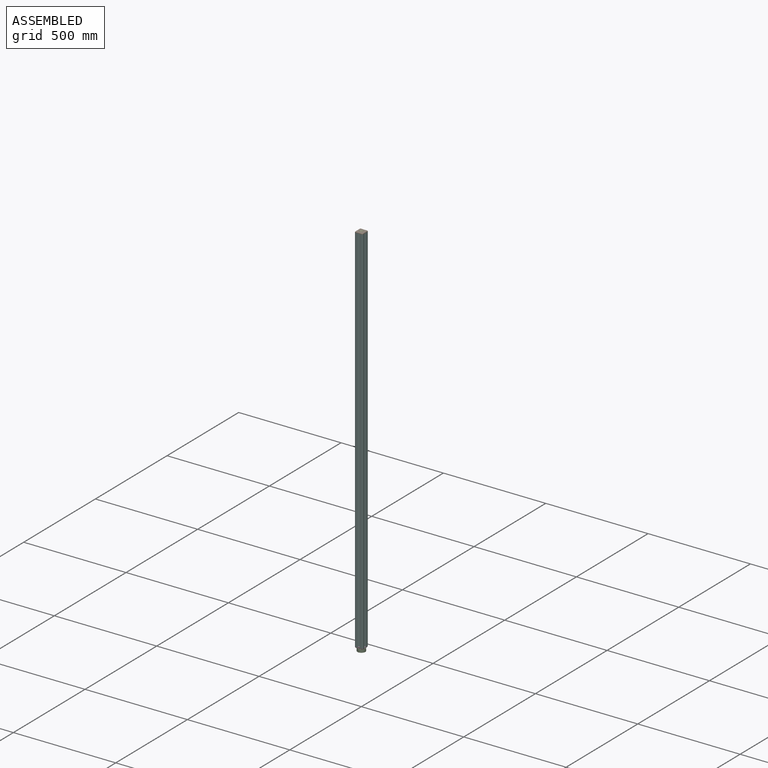
[diagram: assembled view]
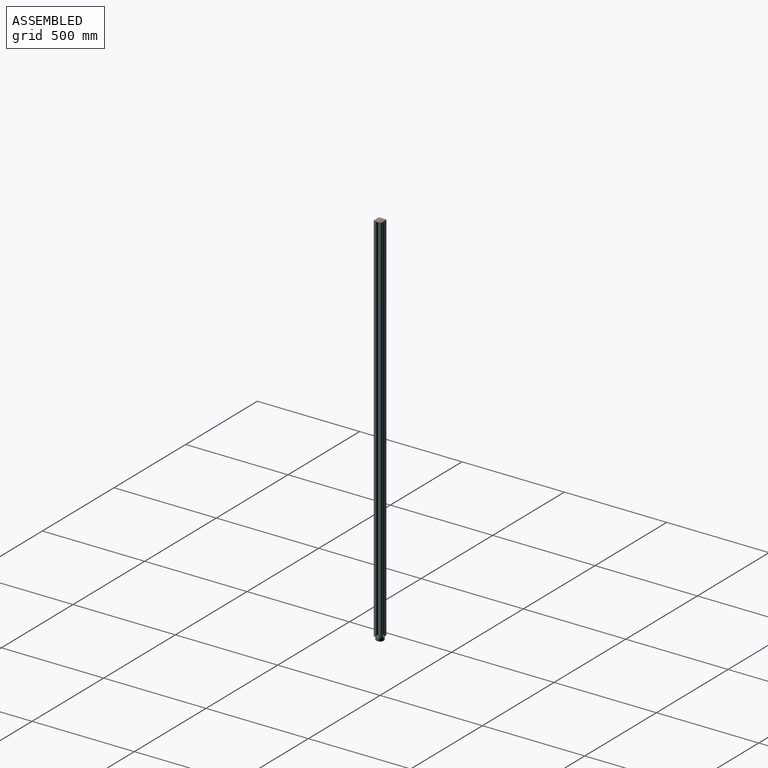
[diagram: assembled view, second angle]
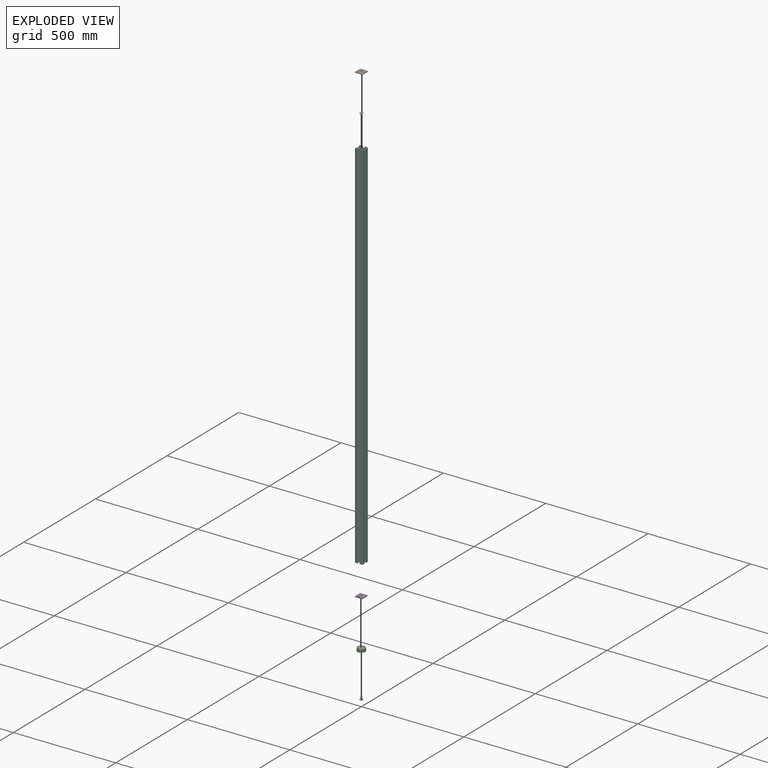
[diagram: exploded view]
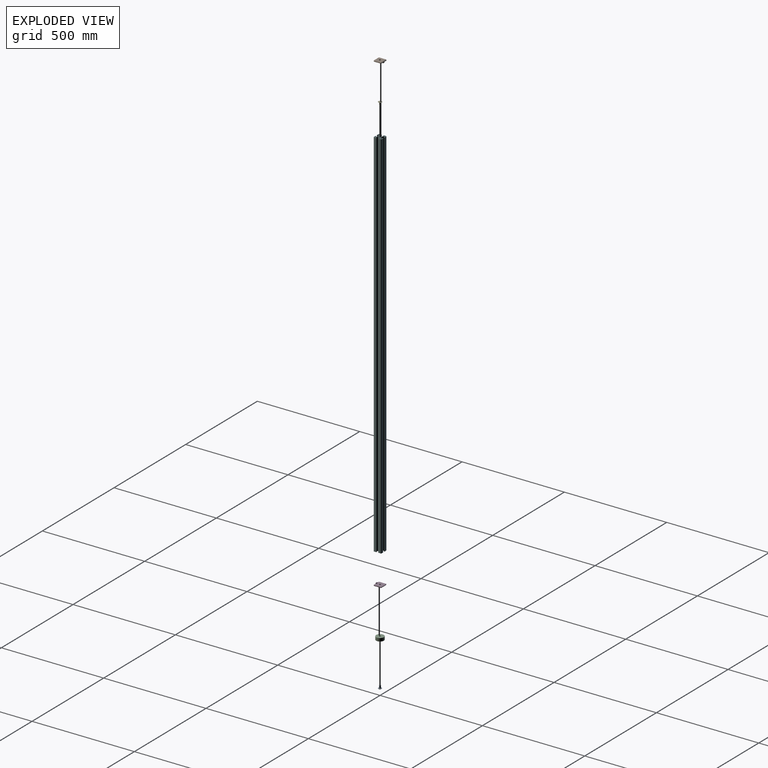
[diagram: exploded view, second angle]
ASSEMBLY  parts=6 mates=12
PART A: 19 faces, bbox 18.4x17x17 mm
  f0: torus R=0.76mm, axis (1,0,0), area 101mm2, adj f1,f2,f10
  f1: torus R=0.76mm, axis (1,0,0), area 101mm2, adj f0,f2,f10
  f2: plane 5.79x5.79mm, normal (-1,0,0), area 6.2mm2, adj f0,f1,f3,f4,f5,f6,f7,f8
  f3: plane 3.56x2.41mm, normal (0,-0.87,-0.5), area 9.9mm2, adj f2,f4,f8,f9
  f4: plane 3.56x2.79mm, normal (0,0,-1), area 9.9mm2, adj f2,f3,f5,f9
  f5: plane 3.56x2.41mm, normal (0,0.87,-0.5), area 9.9mm2, adj f2,f4,f6,f9
  f6: plane 3.56x2.41mm, normal (0,0.87,0.5), area 9.9mm2, adj f2,f5,f7,f9
  f7: plane 3.56x2.79mm, normal (0,0,1), area 9.9mm2, adj f2,f6,f8,f9
  f8: plane 3.56x2.41mm, normal (0,-0.87,0.5), area 9.9mm2, adj f2,f3,f7,f9
  f9: plane 5.57x4.83mm, normal (-1,0,0), area 20.2mm2, adj f3,f4,f5,f6,f7,f8
  f10: plane 17.02x17.02mm, normal (-1,0,0), area 43.2mm2, adj f0,f1,f11,f12
  f11: cylinder r=8.51mm len=17.02mm, axis (-1,0,0), area 21.7mm2, adj f10,f12,f13
  f12: cylinder r=8.51mm len=17.02mm, axis (-1,0,0), area 21.7mm2, adj f10,f11,f13
  f13: plane 17.02x17.02mm, normal (1,0,0), area 178mm2, adj f11,f12,f14,f15
  f14: cylinder r=3.97mm len=13.45mm, axis (-1,0,0), area 167.7mm2, adj f13,f15,f17
  f15: cylinder r=3.97mm len=13.45mm, axis (-1,0,0), area 167.7mm2, adj f13,f14,f16
  f16: cone r=3.97mm half-angle=45deg, axis (-1,0,0), area 13.2mm2, adj f15,f17,f18
  f17: cone r=3.97mm half-angle=45deg, axis (-1,0,0), area 13.2mm2, adj f14,f16,f18
  f18: plane 6.26x6.26mm, normal (1,0,0), area 30.8mm2, adj f16,f17
PART B: 28 faces, bbox 38.1x38.1x8.7 mm
  f0: cylinder r=0.38mm len=3.96mm, axis (0,0,-1), area 2.4mm2, adj f1,f6,f25,f26
  f1: plane 7.26x3.96mm, normal (0,-1,0), area 28.8mm2, adj f0,f2,f6,f26
  f2: cylinder r=0.38mm len=3.96mm, axis (0,0,-1), area 2.4mm2, adj f1,f3,f6,f26
  f3: plane 3.96x3.2mm, normal (1,0,0), area 12.7mm2, adj f2,f4,f6,f26
  f4: cylinder r=0.38mm len=3.96mm, axis (0,0,-1), area 2.4mm2, adj f3,f5,f6,f26
  f5: plane 31.75x5.56mm, normal (0,1,0), area 79.6mm2, adj f4,f6,f7,f11,f13,f26,f27
  f6: plane 38.1x38.1mm, normal (0,0,-1), area 1361.3mm2, adj f0,f1,f2,f3,f4,f5,f7,f8
  f7: cylinder r=3.17mm len=3.18mm, axis (0,0,-1), area 8mm2, adj f5,f6,f8,f10
  f8: plane 31.75x1.6mm, normal (-1,0,0), area 50.8mm2, adj f6,f7,f9,f17
  f9: cylinder r=3.17mm len=31.75mm, axis (0,1,0), area 158.3mm2, adj f8,f10,f18,f20
  f10: sphere r=3.17mm, area 15.8mm2, adj f7,f9,f11
  f11: cylinder r=3.17mm len=31.75mm, axis (1,0,0), area 158.3mm2, adj f5,f10,f12,f20
  f12: sphere r=3.17mm, area 15.8mm2, adj f11,f13,f21
  f13: cylinder r=3.17mm len=3.18mm, axis (0,0,1), area 8mm2, adj f5,f6,f12,f14
  f14: plane 31.75x1.6mm, normal (1,0,0), area 50.8mm2, adj f6,f13,f15,f21
  f15: cylinder r=3.17mm len=3.18mm, axis (0,0,1), area 8mm2, adj f6,f14,f16,f22
  f16: plane 31.75x1.6mm, normal (0,-1,0), area 50.8mm2, adj f6,f15,f17,f19
  f17: cylinder r=3.17mm len=3.18mm, axis (0,0,1), area 8mm2, adj f6,f8,f16,f18
  f18: sphere r=3.17mm, area 15.8mm2, adj f9,f17,f19
  f19: cylinder r=3.17mm len=31.75mm, axis (-1,0,0), area 158.3mm2, adj f16,f18,f20,f22
  f20: plane 31.75x31.75mm, normal (0,0,1), area 958.1mm2, adj f9,f11,f19,f21,f23,f24
  f21: cylinder r=3.17mm len=31.75mm, axis (0,-1,0), area 158.3mm2, adj f12,f14,f20,f22
  f22: sphere r=3.17mm, area 15.8mm2, adj f15,f19,f21
  f23: cylinder r=3.99mm len=7.98mm, axis (0,0,1), area 59.8mm2, adj f6,f20,f24
  f24: cylinder r=3.99mm len=7.98mm, axis (0,0,1), area 59.8mm2, adj f6,f20,f23
  f25: plane 3.96x3.2mm, normal (-1,0,0), area 12.7mm2, adj f0,f6,f26,f27
  f26: plane 8.03x3.96mm, normal (0,0,-1), area 31.7mm2, adj f0,f1,f2,f3,f4,f5,f25,f27
  f27: cylinder r=0.38mm len=3.96mm, axis (0,0,-1), area 2.4mm2, adj f5,f6,f25,f26
PART C: 13 faces, bbox 41.2x15.9x41.2 mm
  f0: plane 19.05x19.05mm, normal (0,1,0), area 235.7mm2, adj f1,f2,f11,f12
  f1: cylinder r=9.53mm len=19.05mm, axis (0,1,0), area 260.7mm2, adj f0,f2,f3
  f2: cylinder r=9.53mm len=19.05mm, axis (0,1,0), area 260.7mm2, adj f0,f1,f3
  f3: plane 36.83x36.83mm, normal (0,1,0), area 780.3mm2, adj f1,f2,f4,f5
  f4: torus R=18.41mm, axis (0,-1,0), area 59mm2, adj f3,f5,f7
  f5: torus R=18.41mm, axis (0,-1,0), area 59mm2, adj f3,f4,f6
  f6: cylinder r=19.05mm len=38.1mm, axis (0,1,0), area 874.1mm2, adj f5,f7,f9
  f7: cylinder r=19.05mm len=38.1mm, axis (0,1,0), area 874.1mm2, adj f4,f6,f8
  f8: torus R=18.41mm, axis (0,-1,0), area 59mm2, adj f7,f9,f10
  f9: torus R=18.41mm, axis (0,-1,0), area 59mm2, adj f6,f8,f10
  f10: plane 36.83x36.83mm, normal (0,-1,0), area 1016mm2, adj f8,f9,f11,f12
  f11: cylinder r=3.96mm len=7.92mm, axis (0,1,0), area 89.2mm2, adj f0,f10,f12
  f12: cylinder r=3.96mm len=7.92mm, axis (0,1,0), area 89.2mm2, adj f0,f10,f11
PART D: same geometry as B
PART E: 82 faces, bbox 19.4x18.4x19.4 mm
  f0: plane 2.07x2.06mm, normal (-1,0,0), area 0.7mm2, adj f1,f3,f4,f11
  f1: cone r=1.78mm half-angle=48.8deg, axis (0,1,0), area 17.1mm2, adj f0,f2,f3,f5,f11,f22
  f2: plane 2.07x2.06mm, normal (-1,0,0), area 0.7mm2, adj f1,f3,f4,f5
  f3: cylinder r=3.81mm len=7.2mm, axis (0,-1,0), area 3.6mm2, adj f0,f1,f2,f4
  f4: cone r=3.81mm half-angle=48.8deg, axis (0,1,0), area 17.1mm2, adj f0,f2,f3,f5,f11,f13
  f5: plane 2.76x1mm, normal (0,0,-1), area 0.9mm2, adj f1,f2,f4,f6,f9,f10
  f6: cone r=1.78mm half-angle=48.8deg, axis (0,1,0), area 17.1mm2, adj f5,f7,f8,f9,f11,f21
  f7: plane 2.07x2.06mm, normal (1,0,0), area 0.7mm2, adj f6,f8,f10,f11
  f8: cylinder r=3.81mm len=7.2mm, axis (0,-1,0), area 3.6mm2, adj f6,f7,f9,f10
  f9: plane 2.07x2.06mm, normal (1,0,0), area 0.7mm2, adj f5,f6,f8,f10
  f10: cone r=3.81mm half-angle=48.8deg, axis (0,1,0), area 17.1mm2, adj f5,f7,f8,f9,f11,f12
  f11: plane 2.76x1mm, normal (0,0,1), area 0.9mm2, adj f0,f1,f4,f6,f7,f10
  f12: cylinder r=1.78mm len=5.84mm, axis (0,1,0), area 32.6mm2, adj f10,f13,f14
  f13: cylinder r=1.78mm len=5.84mm, axis (0,1,0), area 32.6mm2, adj f4,f12,f14
  f14: plane 17.65x17.65mm, normal (0,-1,0), area 234.8mm2, adj f12,f13,f15,f16
  f15: cylinder r=8.83mm len=17.65mm, axis (0,1,0), area 6mm2, adj f14,f16,f18
  f16: cylinder r=8.83mm len=17.65mm, axis (0,1,0), area 6mm2, adj f14,f15,f17
  f17: torus R=8.19mm, axis (0,-1,0), area 21.2mm2, adj f16,f18,f19,f20
  f18: torus R=8.19mm, axis (0,-1,0), area 21.2mm2, adj f15,f17,f19,f20
  f19: sphere r=24.77mm, area 114.4mm2, adj f17,f18,f20
  f20: sphere r=24.77mm, area 114.4mm2, adj f17,f18,f19
  f21: cylinder r=1.78mm len=3.56mm, axis (0,1,0), area 6.4mm2, adj f6,f22,f29
  f22: cylinder r=1.78mm len=3.56mm, axis (0,1,0), area 6.4mm2, adj f1,f21,f23
  f23: cone r=3.81mm half-angle=48.8deg, axis (0,1,0), area 17.1mm2, adj f22,f24,f30,f32,f33,f34
  f24: plane 2.76x1mm, normal (0,0,-1), area 0.9mm2, adj f23,f25,f28,f29,f31,f32
  f25: cone r=1.78mm half-angle=48.8deg, axis (0,1,0), area 17.1mm2, adj f24,f26,f27,f28,f30,f36
  f26: plane 2.07x2.06mm, normal (1,0,0), area 0.7mm2, adj f25,f27,f29,f30
  f27: cylinder r=3.81mm len=7.2mm, axis (0,-1,0), area 3.6mm2, adj f25,f26,f28,f29
  f28: plane 2.07x2.06mm, normal (1,0,0), area 0.7mm2, adj f24,f25,f27,f29
  f29: cone r=3.81mm half-angle=48.8deg, axis (0,1,0), area 17.1mm2, adj f21,f24,f26,f27,f28,f30
  f30: plane 2.76x1mm, normal (0,0,1), area 0.9mm2, adj f23,f25,f26,f29,f31,f34
  f31: cone r=1.78mm half-angle=48.8deg, axis (0,1,0), area 17.1mm2, adj f24,f30,f32,f33,f34,f35
  f32: plane 2.07x2.06mm, normal (-1,0,0), area 0.7mm2, adj f23,f24,f31,f33
  f33: cylinder r=3.81mm len=7.2mm, axis (0,-1,0), area 3.6mm2, adj f23,f31,f32,f34
  f34: plane 2.07x2.06mm, normal (-1,0,0), area 0.7mm2, adj f23,f30,f31,f33
  f35: cylinder r=1.78mm len=3.56mm, axis (0,1,0), area 6.4mm2, adj f31,f36,f43
  f36: cylinder r=1.78mm len=3.56mm, axis (0,1,0), area 6.4mm2, adj f25,f35,f37
  f37: cone r=3.81mm half-angle=48.8deg, axis (0,1,0), area 17.1mm2, adj f36,f38,f44,f46,f47,f48
  f38: plane 2.76x1mm, normal (0,0,1), area 0.9mm2, adj f37,f39,f42,f43,f45,f46
  f39: cone r=1.78mm half-angle=48.8deg, axis (0,1,0), area 17.1mm2, adj f38,f40,f41,f42,f44,f50
  f40: plane 2.07x2.06mm, normal (-1,0,0), area 0.7mm2, adj f39,f41,f43,f44
  f41: cylinder r=3.81mm len=7.2mm, axis (0,-1,0), area 3.6mm2, adj f39,f40,f42,f43
  f42: plane 2.07x2.06mm, normal (-1,0,0), area 0.7mm2, adj f38,f39,f41,f43
  f43: cone r=3.81mm half-angle=48.8deg, axis (0,1,0), area 17.1mm2, adj f35,f38,f40,f41,f42,f44
  f44: plane 2.76x1mm, normal (0,0,-1), area 0.9mm2, adj f37,f39,f40,f43,f45,f48
  f45: cone r=1.78mm half-angle=48.8deg, axis (0,1,0), area 17.1mm2, adj f38,f44,f46,f47,f48,f49
  f46: plane 2.07x2.06mm, normal (1,0,0), area 0.7mm2, adj f37,f38,f45,f47
  f47: cylinder r=3.81mm len=7.2mm, axis (0,-1,0), area 3.6mm2, adj f37,f45,f46,f48
  f48: plane 2.07x2.06mm, normal (1,0,0), area 0.7mm2, adj f37,f44,f45,f47
  f49: cylinder r=1.78mm len=3.56mm, axis (0,1,0), area 6.4mm2, adj f45,f50,f57
  f50: cylinder r=1.78mm len=3.56mm, axis (0,1,0), area 6.4mm2, adj f39,f49,f51
  f51: cone r=3.81mm half-angle=48.8deg, axis (0,1,0), area 17.1mm2, adj f50,f52,f58,f60,f61,f62
  f52: plane 2.76x1mm, normal (0,0,-1), area 0.9mm2, adj f51,f53,f56,f57,f59,f60
  f53: cone r=1.78mm half-angle=48.8deg, axis (0,1,0), area 17.1mm2, adj f52,f54,f55,f56,f58,f64
  f54: plane 2.07x2.06mm, normal (1,0,0), area 0.7mm2, adj f53,f55,f57,f58
  f55: cylinder r=3.81mm len=7.2mm, axis (0,-1,0), area 3.6mm2, adj f53,f54,f56,f57
  f56: plane 2.07x2.06mm, normal (1,0,0), area 0.7mm2, adj f52,f53,f55,f57
  f57: cone r=3.81mm half-angle=48.8deg, axis (0,1,0), area 17.1mm2, adj f49,f52,f54,f55,f56,f58
  f58: plane 2.76x1mm, normal (0,0,1), area 0.9mm2, adj f51,f53,f54,f57,f59,f62
  f59: cone r=1.78mm half-angle=48.8deg, axis (0,1,0), area 17.1mm2, adj f52,f58,f60,f61,f62,f63
  f60: plane 2.07x2.06mm, normal (-1,0,0), area 0.7mm2, adj f51,f52,f59,f61
  f61: cylinder r=3.81mm len=7.2mm, axis (0,-1,0), area 3.6mm2, adj f51,f59,f60,f62
  f62: plane 2.07x2.06mm, normal (-1,0,0), area 0.7mm2, adj f51,f58,f59,f61
  f63: cylinder r=1.78mm len=3.56mm, axis (0,1,0), area 6.4mm2, adj f59,f64,f67
  f64: cylinder r=1.78mm len=3.56mm, axis (0,1,0), area 6.4mm2, adj f53,f63,f65
  f65: cone r=3.81mm half-angle=48.8deg, axis (0,1,0), area 17.1mm2, adj f64,f66,f68,f69,f70,f71
  f66: plane 2.76x1mm, normal (0,0,1), area 0.9mm2, adj f65,f67,f71,f72,f74,f77
  f67: cone r=3.81mm half-angle=48.8deg, axis (0,1,0), area 17.1mm2, adj f63,f66,f68,f75,f76,f77
  f68: plane 2.76x1mm, normal (0,0,-1), area 0.9mm2, adj f65,f67,f69,f72,f74,f75
  f69: plane 2.07x2.06mm, normal (1,0,0), area 0.7mm2, adj f65,f68,f70,f72
  f70: cylinder r=3.81mm len=7.2mm, axis (0,-1,0), area 3.6mm2, adj f65,f69,f71,f72
  f71: plane 2.07x2.06mm, normal (1,0,0), area 0.7mm2, adj f65,f66,f70,f72
  f72: cone r=1.78mm half-angle=48.8deg, axis (0,1,0), area 17.1mm2, adj f66,f68,f69,f70,f71,f73
  f73: plane 5.33x5.33mm, normal (0,1,0), area 12.4mm2, adj f72,f74,f78,f79
  f74: cone r=1.78mm half-angle=48.8deg, axis (0,1,0), area 17.1mm2, adj f66,f68,f73,f75,f76,f77
  f75: plane 2.07x2.06mm, normal (-1,0,0), area 0.7mm2, adj f67,f68,f74,f76
  f76: cylinder r=3.81mm len=7.2mm, axis (0,-1,0), area 3.6mm2, adj f67,f74,f75,f77
  f77: plane 2.07x2.06mm, normal (-1,0,0), area 0.7mm2, adj f66,f67,f74,f76
  f78: cone r=2.67mm half-angle=25.1deg, axis (0,1,0), area 18.8mm2, adj f73,f79,f80,f81
  f79: cone r=2.67mm half-angle=25.1deg, axis (0,1,0), area 18.8mm2, adj f73,f78,f80,f81
  f80: sphere r=1.57mm, area 4.5mm2, adj f78,f79,f81
  f81: sphere r=1.57mm, area 4.5mm2, adj f78,f79,f80
PART F: 186 faces, bbox 38.1x38.1x1828.8 mm
  f0: cylinder r=1.57mm len=1828.8mm, axis (0,0,1), area 4523.9mm2, adj f1,f183,f184,f185
  f1: plane 1828.8x10.24mm, normal (-1,0,0), area 18720mm2, adj f0,f2,f184,f185
  f2: cylinder r=3.17mm len=1828.8mm, axis (0,0,1), area 9120.7mm2, adj f1,f3,f184,f185
  f3: plane 1828.8x10.24mm, normal (0,-1,0), area 18720mm2, adj f2,f4,f184,f185
  f4: cylinder r=1.57mm len=1828.8mm, axis (0,0,1), area 4523.9mm2, adj f3,f5,f184,f185
  f5: plane 1828.8x0.91mm, normal (1,0,0), area 1672.3mm2, adj f4,f6,f184,f185
  f6: cylinder r=1.57mm len=1828.8mm, axis (0,0,1), area 4523.9mm2, adj f5,f7,f184,f185
  f7: plane 1828.8x0.98mm, normal (0,1,0), area 1790.3mm2, adj f6,f8,f184,f185
  f8: cylinder r=0.25mm len=1828.8mm, axis (0,0,1), area 729.7mm2, adj f7,f9,f184,f185
  f9: plane 1828.8x1.35mm, normal (-1,0,0), area 2461.9mm2, adj f8,f10,f184,f185
  f10: cylinder r=0.25mm len=1828.8mm, axis (0,0,1), area 729.7mm2, adj f9,f11,f184,f185
  f11: plane 1828.8x2.29mm, normal (0,1,0), area 4180.6mm2, adj f10,f12,f184,f185
  f12: cylinder r=0.89mm len=1828.8mm, axis (0,0,1), area 2553.8mm2, adj f11,f13,f184,f185
  f13: plane 1828.8x3.56mm, normal (1,0,0), area 6513.9mm2, adj f12,f14,f184,f185
  f14: cylinder r=1.27mm len=1828.8mm, axis (0,0,1), area 1824.1mm2, adj f13,f15,f184,f185
  f15: plane 1828.8x4.38mm, normal (0.71,-0.71,0), area 11316.8mm2, adj f14,f16,f184,f185
  f16: cylinder r=1.27mm len=1828.8mm, axis (0,0,1), area 1824.1mm2, adj f15,f17,f184,f185
  f17: plane 1828.8x9.31mm, normal (0,-1,0), area 17026.5mm2, adj f16,f18,f184,f185
  f18: cylinder r=1.27mm len=1828.8mm, axis (0,0,1), area 1824.1mm2, adj f17,f19,f184,f185
  f19: plane 1828.8x4.38mm, normal (-0.71,-0.71,0), area 11316.8mm2, adj f18,f20,f184,f185
  f20: cylinder r=1.27mm len=1828.8mm, axis (0,0,1), area 1824.1mm2, adj f19,f21,f184,f185
  f21: plane 1828.8x3.56mm, normal (-1,0,0), area 6513.9mm2, adj f20,f22,f184,f185
  f22: cylinder r=0.89mm len=1828.8mm, axis (0,0,1), area 2553.8mm2, adj f21,f23,f184,f185
  f23: plane 1828.8x2.29mm, normal (0,1,0), area 4180.6mm2, adj f22,f24,f184,f185
  f24: cylinder r=0.25mm len=1828.8mm, axis (0,0,1), area 729.7mm2, adj f23,f25,f184,f185
  f25: plane 1828.8x1.35mm, normal (1,0,0), area 2461.9mm2, adj f24,f26,f184,f185
  f26: cylinder r=0.25mm len=1828.8mm, axis (0,0,1), area 729.7mm2, adj f25,f27,f184,f185
  f27: plane 1828.8x0.98mm, normal (0,1,0), area 1790.3mm2, adj f26,f28,f184,f185
  f28: cylinder r=1.57mm len=1828.8mm, axis (0,0,1), area 4523.9mm2, adj f27,f29,f184,f185
  f29: plane 1828.8x0.91mm, normal (-1,0,0), area 1672.3mm2, adj f28,f30,f184,f185
  f30: cylinder r=1.57mm len=1828.8mm, axis (0,0,1), area 4523.9mm2, adj f29,f31,f184,f185
  f31: plane 1828.8x10.24mm, normal (0,-1,0), area 18720mm2, adj f30,f32,f184,f185
  f32: cylinder r=3.17mm len=1828.8mm, axis (0,0,1), area 9120.7mm2, adj f31,f33,f184,f185
  f33: plane 1828.8x10.24mm, normal (1,0,0), area 18720mm2, adj f32,f34,f184,f185
  f34: cylinder r=1.57mm len=1828.8mm, axis (0,0,1), area 4523.9mm2, adj f33,f35,f184,f185
  f35: plane 1828.8x0.91mm, normal (0,1,0), area 1672.3mm2, adj f34,f36,f184,f185
  f36: cylinder r=1.57mm len=1828.8mm, axis (0,0,1), area 4523.9mm2, adj f35,f37,f184,f185
  f37: plane 1828.8x0.98mm, normal (-1,0,0), area 1790.3mm2, adj f36,f38,f184,f185
  f38: cylinder r=0.25mm len=1828.8mm, axis (0,0,1), area 729.7mm2, adj f37,f39,f184,f185
  f39: plane 1828.8x1.35mm, normal (0,-1,0), area 2461.9mm2, adj f38,f40,f184,f185
  f40: cylinder r=0.25mm len=1828.8mm, axis (0,0,1), area 729.7mm2, adj f39,f41,f184,f185
  f41: plane 1828.8x2.29mm, normal (-1,0,0), area 4180.6mm2, adj f40,f42,f184,f185
  f42: cylinder r=0.89mm len=1828.8mm, axis (0,0,1), area 2553.8mm2, adj f41,f43,f184,f185
  f43: plane 1828.8x3.56mm, normal (0,1,0), area 6513.9mm2, adj f42,f44,f184,f185
  f44: cylinder r=1.27mm len=1828.8mm, axis (0,0,1), area 1824.1mm2, adj f43,f45,f184,f185
  f45: plane 1828.8x4.38mm, normal (0.71,0.71,0), area 11316.8mm2, adj f44,f46,f184,f185
  f46: cylinder r=1.27mm len=1828.8mm, axis (0,0,1), area 1824.1mm2, adj f45,f47,f184,f185
  f47: plane 1828.8x9.31mm, normal (1,0,0), area 17026.5mm2, adj f46,f48,f184,f185
  f48: cylinder r=1.27mm len=1828.8mm, axis (0,0,1), area 1824.1mm2, adj f47,f49,f184,f185
  f49: plane 1828.8x4.38mm, normal (0.71,-0.71,0), area 11316.8mm2, adj f48,f50,f184,f185
  f50: cylinder r=1.27mm len=1828.8mm, axis (0,0,1), area 1824.1mm2, adj f49,f51,f184,f185
  f51: plane 1828.8x3.56mm, normal (0,-1,0), area 6513.9mm2, adj f50,f52,f184,f185
  f52: cylinder r=0.89mm len=1828.8mm, axis (0,0,1), area 2553.8mm2, adj f51,f53,f184,f185
  f53: plane 1828.8x2.29mm, normal (-1,0,0), area 4180.6mm2, adj f52,f54,f184,f185
  f54: cylinder r=0.25mm len=1828.8mm, axis (0,0,1), area 729.7mm2, adj f53,f55,f184,f185
  f55: plane 1828.8x1.35mm, normal (0,1,0), area 2461.9mm2, adj f54,f56,f184,f185
  f56: cylinder r=0.25mm len=1828.8mm, axis (0,0,1), area 729.7mm2, adj f55,f57,f184,f185
  f57: plane 1828.8x0.98mm, normal (-1,0,0), area 1790.3mm2, adj f56,f58,f184,f185
  f58: cylinder r=1.57mm len=1828.8mm, axis (0,0,1), area 4523.9mm2, adj f57,f59,f184,f185
  f59: plane 1828.8x0.91mm, normal (0,-1,0), area 1672.3mm2, adj f58,f60,f184,f185
  f60: cylinder r=1.57mm len=1828.8mm, axis (0,0,1), area 4523.9mm2, adj f59,f61,f184,f185
  f61: plane 1828.8x10.24mm, normal (1,0,0), area 18720mm2, adj f60,f62,f184,f185
  f62: cylinder r=3.17mm len=1828.8mm, axis (0,0,1), area 9120.7mm2, adj f61,f63,f184,f185
  f63: plane 1828.8x10.24mm, normal (0,1,0), area 18720mm2, adj f62,f64,f184,f185
  f64: cylinder r=1.57mm len=1828.8mm, axis (0,0,1), area 4523.9mm2, adj f63,f65,f184,f185
  f65: plane 1828.8x0.91mm, normal (-1,0,0), area 1672.3mm2, adj f64,f66,f184,f185
  f66: cylinder r=1.57mm len=1828.8mm, axis (0,0,1), area 4523.9mm2, adj f65,f67,f184,f185
  f67: plane 1828.8x0.98mm, normal (0,-1,0), area 1790.3mm2, adj f66,f68,f184,f185
  f68: cylinder r=0.25mm len=1828.8mm, axis (0,0,1), area 729.7mm2, adj f67,f69,f184,f185
  f69: plane 1828.8x1.35mm, normal (1,0,0), area 2461.9mm2, adj f68,f70,f184,f185
  f70: cylinder r=0.25mm len=1828.8mm, axis (0,0,1), area 729.7mm2, adj f69,f71,f184,f185
  f71: plane 1828.8x2.29mm, normal (0,-1,0), area 4180.6mm2, adj f70,f72,f184,f185
  f72: cylinder r=0.89mm len=1828.8mm, axis (0,0,1), area 2553.8mm2, adj f71,f73,f184,f185
  f73: plane 1828.8x3.56mm, normal (-1,0,0), area 6513.9mm2, adj f72,f74,f184,f185
  f74: cylinder r=1.27mm len=1828.8mm, axis (0,0,1), area 1824.1mm2, adj f73,f75,f184,f185
  f75: plane 1828.8x4.38mm, normal (-0.71,0.71,0), area 11316.8mm2, adj f74,f76,f184,f185
  f76: cylinder r=1.27mm len=1828.8mm, axis (0,0,1), area 1824.1mm2, adj f75,f77,f184,f185
  f77: plane 1828.8x9.31mm, normal (0,1,0), area 17026.5mm2, adj f76,f78,f184,f185
  f78: cylinder r=1.27mm len=1828.8mm, axis (0,0,1), area 1824.1mm2, adj f77,f79,f184,f185
  f79: plane 1828.8x4.38mm, normal (0.71,0.71,0), area 11316.8mm2, adj f78,f80,f184,f185
  f80: cylinder r=1.27mm len=1828.8mm, axis (0,0,1), area 1824.1mm2, adj f79,f81,f184,f185
  f81: plane 1828.8x3.56mm, normal (1,0,0), area 6513.9mm2, adj f80,f82,f184,f185
  f82: cylinder r=0.89mm len=1828.8mm, axis (0,0,1), area 2553.8mm2, adj f81,f83,f184,f185
  f83: plane 1828.8x2.29mm, normal (0,-1,0), area 4180.6mm2, adj f82,f84,f184,f185
  f84: cylinder r=0.25mm len=1828.8mm, axis (0,0,1), area 729.7mm2, adj f83,f85,f184,f185
  f85: plane 1828.8x1.35mm, normal (-1,0,0), area 2461.9mm2, adj f84,f86,f184,f185
  f86: cylinder r=0.25mm len=1828.8mm, axis (0,0,1), area 729.7mm2, adj f85,f87,f184,f185
  f87: plane 1828.8x0.98mm, normal (0,-1,0), area 1790.3mm2, adj f86,f88,f184,f185
  f88: cylinder r=1.57mm len=1828.8mm, axis (0,0,1), area 4523.9mm2, adj f87,f89,f184,f185
  f89: plane 1828.8x0.91mm, normal (1,0,0), area 1672.3mm2, adj f88,f90,f184,f185
  f90: cylinder r=1.57mm len=1828.8mm, axis (0,0,1), area 4523.9mm2, adj f89,f91,f184,f185
  f91: plane 1828.8x10.24mm, normal (0,1,0), area 18720mm2, adj f90,f92,f184,f185
  f92: cylinder r=3.17mm len=1828.8mm, axis (0,0,1), area 9120.7mm2, adj f91,f93,f184,f185
  f93: plane 1828.8x10.24mm, normal (-1,0,0), area 18720mm2, adj f92,f94,f184,f185
  f94: cylinder r=1.57mm len=1828.8mm, axis (0,0,1), area 4523.9mm2, adj f93,f95,f184,f185
  f95: plane 1828.8x0.91mm, normal (0,-1,0), area 1672.3mm2, adj f94,f96,f184,f185
  f96: cylinder r=1.57mm len=1828.8mm, axis (0,0,1), area 4523.9mm2, adj f95,f97,f184,f185
  f97: plane 1828.8x0.98mm, normal (1,0,0), area 1790.3mm2, adj f96,f98,f184,f185
  f98: cylinder r=0.25mm len=1828.8mm, axis (0,0,1), area 729.7mm2, adj f97,f99,f184,f185
  f99: plane 1828.8x1.35mm, normal (0,1,0), area 2461.9mm2, adj f98,f100,f184,f185
  f100: cylinder r=0.25mm len=1828.8mm, axis (0,0,1), area 729.7mm2, adj f99,f101,f184,f185
  f101: plane 1828.8x2.29mm, normal (1,0,0), area 4180.6mm2, adj f100,f102,f184,f185
  f102: cylinder r=0.89mm len=1828.8mm, axis (0,0,1), area 2553.8mm2, adj f101,f103,f184,f185
  f103: plane 1828.8x3.56mm, normal (0,-1,0), area 6513.9mm2, adj f102,f104,f184,f185
  f104: cylinder r=1.27mm len=1828.8mm, axis (0,0,1), area 1824.1mm2, adj f103,f105,f184,f185
  f105: plane 1828.8x4.38mm, normal (-0.71,-0.71,0), area 11316.8mm2, adj f104,f106,f184,f185
  f106: cylinder r=1.27mm len=1828.8mm, axis (0,0,1), area 1824.1mm2, adj f105,f107,f184,f185
  f107: plane 1828.8x9.31mm, normal (-1,0,0), area 17026.5mm2, adj f106,f108,f184,f185
  f108: cylinder r=1.27mm len=1828.8mm, axis (0,0,1), area 1824.1mm2, adj f107,f109,f184,f185
  f109: plane 1828.8x4.38mm, normal (-0.71,0.71,0), area 11316.8mm2, adj f108,f110,f184,f185
  f110: cylinder r=1.27mm len=1828.8mm, axis (0,0,1), area 1824.1mm2, adj f109,f111,f184,f185
  f111: plane 1828.8x3.56mm, normal (0,1,0), area 6513.9mm2, adj f110,f112,f184,f185
  f112: cylinder r=0.89mm len=1828.8mm, axis (0,0,1), area 2553.8mm2, adj f111,f113,f184,f185
  f113: plane 1828.8x2.29mm, normal (1,0,0), area 4180.6mm2, adj f112,f114,f184,f185
  f114: cylinder r=0.25mm len=1828.8mm, axis (0,0,1), area 729.7mm2, adj f113,f115,f184,f185
  f115: plane 1828.8x1.35mm, normal (0,-1,0), area 2461.9mm2, adj f114,f116,f184,f185
  f116: cylinder r=0.25mm len=1828.8mm, axis (0,0,1), area 729.7mm2, adj f115,f117,f184,f185
  f117: plane 1828.8x0.98mm, normal (1,0,0), area 1790.3mm2, adj f116,f118,f184,f185
  f118: cylinder r=1.57mm len=1828.8mm, axis (0,0,1), area 4523.9mm2, adj f117,f183,f184,f185
  f119: cylinder r=0.25mm len=1828.8mm, axis (0,0,1), area 729.7mm2, adj f120,f178,f184,f185
  f120: plane 1828.8x2.34mm, normal (0,-1,0), area 4273.5mm2, adj f119,f121,f184,f185
  f121: cylinder r=2.79mm len=1828.8mm, axis (0,0,1), area 8026.2mm2, adj f120,f122,f184,f185
  f122: plane 1828.8x2.34mm, normal (-1,0,0), area 4273.5mm2, adj f121,f123,f184,f185
  f123: cylinder r=0.25mm len=1828.8mm, axis (0,0,1), area 729.7mm2, adj f122,f124,f184,f185
  f124: plane 1828.8x4.88mm, normal (0,1,0), area 8918.7mm2, adj f123,f125,f184,f185
  f125: cylinder r=0.25mm len=1828.8mm, axis (0,0,1), area 729.7mm2, adj f124,f178,f184,f185
  f126: cylinder r=0.25mm len=1828.8mm, axis (0,0,1), area 729.7mm2, adj f127,f179,f184,f185
  f127: plane 1828.8x4.88mm, normal (0,-1,0), area 8918.7mm2, adj f126,f128,f184,f185
  f128: cylinder r=0.25mm len=1828.8mm, axis (0,0,1), area 729.7mm2, adj f127,f129,f184,f185
  f129: plane 1828.8x2.34mm, normal (-1,0,0), area 4273.5mm2, adj f128,f130,f184,f185
  f130: cylinder r=2.79mm len=1828.8mm, axis (0,0,1), area 8026.2mm2, adj f129,f131,f184,f185
  f131: plane 1828.8x2.34mm, normal (0,1,0), area 4273.5mm2, adj f130,f132,f184,f185
  f132: cylinder r=0.25mm len=1828.8mm, axis (0,0,1), area 729.7mm2, adj f131,f179,f184,f185
  f133: plane 1828.8x0.99mm, normal (1,0,0), area 1818.2mm2, adj f134,f180,f184,f185
  f134: cylinder r=0.89mm len=1828.8mm, axis (0,0,1), area 1276.9mm2, adj f133,f135,f184,f185
  f135: plane 1828.8x1.89mm, normal (0.71,-0.71,0), area 4889.9mm2, adj f134,f136,f184,f185
  f136: cylinder r=3.33mm len=1828.8mm, axis (0,0,1), area 5291mm2, adj f135,f137,f184,f185
  f137: plane 1828.8x1.89mm, normal (0.71,0.71,0), area 4889.9mm2, adj f136,f138,f184,f185
  f138: cylinder r=0.89mm len=1828.8mm, axis (0,0,1), area 1276.9mm2, adj f137,f139,f184,f185
  f139: plane 1828.8x0.99mm, normal (1,0,0), area 1818.2mm2, adj f138,f140,f184,f185
  f140: cylinder r=0.25mm len=1828.8mm, axis (0,0,1), area 729.7mm2, adj f139,f141,f184,f185
  f141: plane 1828.8x0.99mm, normal (0,-1,0), area 1818.2mm2, adj f140,f142,f184,f185
  f142: cylinder r=0.89mm len=1828.8mm, axis (0,0,1), area 1276.9mm2, adj f141,f143,f184,f185
  f143: plane 1828.8x1.89mm, normal (-0.71,-0.71,0), area 4889.9mm2, adj f142,f144,f184,f185
  f144: cylinder r=3.33mm len=1828.8mm, axis (0,0,1), area 5291mm2, adj f143,f145,f184,f185
  f145: plane 1828.8x1.89mm, normal (0.71,-0.71,0), area 4889.9mm2, adj f144,f146,f184,f185
  f146: cylinder r=0.89mm len=1828.8mm, axis (0,0,1), area 1276.9mm2, adj f145,f147,f184,f185
  f147: plane 1828.8x0.99mm, normal (0,-1,0), area 1818.2mm2, adj f146,f148,f184,f185
  f148: cylinder r=0.25mm len=1828.8mm, axis (0,0,1), area 729.7mm2, adj f147,f149,f184,f185
  f149: plane 1828.8x0.99mm, normal (-1,0,0), area 1818.2mm2, adj f148,f150,f184,f185
  f150: cylinder r=0.89mm len=1828.8mm, axis (0,0,1), area 1276.9mm2, adj f149,f151,f184,f185
  f151: plane 1828.8x1.89mm, normal (-0.71,0.71,0), area 4889.9mm2, adj f150,f152,f184,f185
  f152: cylinder r=3.33mm len=1828.8mm, axis (0,0,1), area 5291mm2, adj f151,f153,f184,f185
  f153: plane 1828.8x1.89mm, normal (-0.71,-0.71,0), area 4889.9mm2, adj f152,f154,f184,f185
  f154: cylinder r=0.89mm len=1828.8mm, axis (0,0,1), area 1276.9mm2, adj f153,f155,f184,f185
  f155: plane 1828.8x0.99mm, normal (-1,0,0), area 1818.2mm2, adj f154,f156,f184,f185
  f156: cylinder r=0.25mm len=1828.8mm, axis (0,0,1), area 729.7mm2, adj f155,f157,f184,f185
  f157: plane 1828.8x0.99mm, normal (0,1,0), area 1818.2mm2, adj f156,f158,f184,f185
  f158: cylinder r=0.89mm len=1828.8mm, axis (0,0,1), area 1276.9mm2, adj f157,f159,f184,f185
  f159: plane 1828.8x1.89mm, normal (0.71,0.71,0), area 4889.9mm2, adj f158,f160,f184,f185
  f160: cylinder r=3.33mm len=1828.8mm, axis (0,0,1), area 5291mm2, adj f159,f161,f184,f185
  f161: plane 1828.8x1.89mm, normal (-0.71,0.71,0), area 4889.9mm2, adj f160,f162,f184,f185
  f162: cylinder r=0.89mm len=1828.8mm, axis (0,0,1), area 1276.9mm2, adj f161,f163,f184,f185
  f163: plane 1828.8x0.99mm, normal (0,1,0), area 1818.2mm2, adj f162,f180,f184,f185
  f164: plane 1828.8x2.34mm, normal (1,0,0), area 4273.5mm2, adj f165,f181,f184,f185
  f165: cylinder r=0.25mm len=1828.8mm, axis (0,0,1), area 729.7mm2, adj f164,f166,f184,f185
  f166: plane 1828.8x4.88mm, normal (0,-1,0), area 8918.7mm2, adj f165,f167,f184,f185
  f167: cylinder r=0.25mm len=1828.8mm, axis (0,0,1), area 729.7mm2, adj f166,f168,f184,f185
  f168: plane 1828.8x4.88mm, normal (-1,0,0), area 8918.7mm2, adj f167,f169,f184,f185
  f169: cylinder r=0.25mm len=1828.8mm, axis (0,0,1), area 729.7mm2, adj f168,f170,f184,f185
  f170: plane 1828.8x2.34mm, normal (0,1,0), area 4273.5mm2, adj f169,f181,f184,f185
  f171: plane 1828.8x2.34mm, normal (1,0,0), area 4273.5mm2, adj f172,f182,f184,f185
  f172: cylinder r=2.79mm len=1828.8mm, axis (0,0,1), area 8026.2mm2, adj f171,f173,f184,f185
  f173: plane 1828.8x2.34mm, normal (0,-1,0), area 4273.5mm2, adj f172,f174,f184,f185
  f174: cylinder r=0.25mm len=1828.8mm, axis (0,0,1), area 729.7mm2, adj f173,f175,f184,f185
  f175: plane 1828.8x4.88mm, normal (-1,0,0), area 8918.7mm2, adj f174,f176,f184,f185
  f176: cylinder r=0.25mm len=1828.8mm, axis (0,0,1), area 729.7mm2, adj f175,f177,f184,f185
  f177: plane 1828.8x4.88mm, normal (0,1,0), area 8918.7mm2, adj f176,f182,f184,f185
  f178: plane 1828.8x4.88mm, normal (1,0,0), area 8918.7mm2, adj f119,f125,f184,f185
  f179: plane 1828.8x4.88mm, normal (1,0,0), area 8918.7mm2, adj f126,f132,f184,f185
  f180: cylinder r=0.25mm len=1828.8mm, axis (0,0,1), area 729.7mm2, adj f133,f163,f184,f185
  f181: cylinder r=2.79mm len=1828.8mm, axis (0,0,1), area 8026.2mm2, adj f164,f170,f184,f185
  f182: cylinder r=0.25mm len=1828.8mm, axis (0,0,1), area 729.7mm2, adj f171,f177,f184,f185
  f183: plane 1828.8x0.91mm, normal (0,1,0), area 1672.3mm2, adj f0,f118,f184,f185
  f184: plane 38.1x38.1mm, normal (0,0,-1), area 503.5mm2, adj f0,f1,f2,f3,f4,f5,f6,f7
  f185: plane 38.1x38.1mm, normal (0,0,1), area 503.5mm2, adj f0,f1,f2,f3,f4,f5,f6,f7
PLACE A rot(axis=(0.19,-0.96,0.19),92.2deg) t=(0,0,-1840.74)mm
PLACE B t=(0,0,4.78)mm
PLACE C rot(axis=(-0.96,-0.19,0.19),92.2deg) t=(0,0,-1840.74)mm
PLACE D rot(axis=(1,0,0),180deg) t=(0,0,-1833.58)mm
PLACE E rot(axis=(1,0,0),90deg) t=(0,0,4.78)mm
PLACE F at identity fixed
MATE planar B.f16 <-> F.f31  axis (0,-1,0) through (0,-19.05,0.8)mm
MATE planar D.f14 <-> F.f61  axis (1,0,0) through (19.05,0,-1829.6)mm
MATE planar B.f14 <-> F.f33  axis (1,0,0) through (19.05,0,0.8)mm
MATE cylindrical A.f11 <-> C.f1  axis (0,0,-1) through (0,0,-1834.01)mm
MATE planar A.f0 <-> C.f0  axis (0,0,1) through (0,0,-1840.74)mm
MATE cylindrical C.f1 <-> D.f23  axis (0,0,-1) through (0,0,-1837.16)mm
MATE planar D.f6 <-> F.f184  axis (0,0,1) through (3.99,0,-1828.8)mm
MATE cylindrical E.f1 <-> B.f23  axis (0,0,1) through (0,0,4.78)mm
MATE planar C.f1 <-> D.f20  axis (0,0,1) through (0,0,-1833.58)mm
MATE planar D.f16 <-> F.f63  axis (0,1,0) through (0,19.05,-1829.6)mm
MATE planar E.f1 <-> B.f23  axis (0,0,-1) through (0,0,4.78)mm
MATE planar B.f6 <-> F.f185  axis (0,0,-1) through (0,-0.4,0)mm
